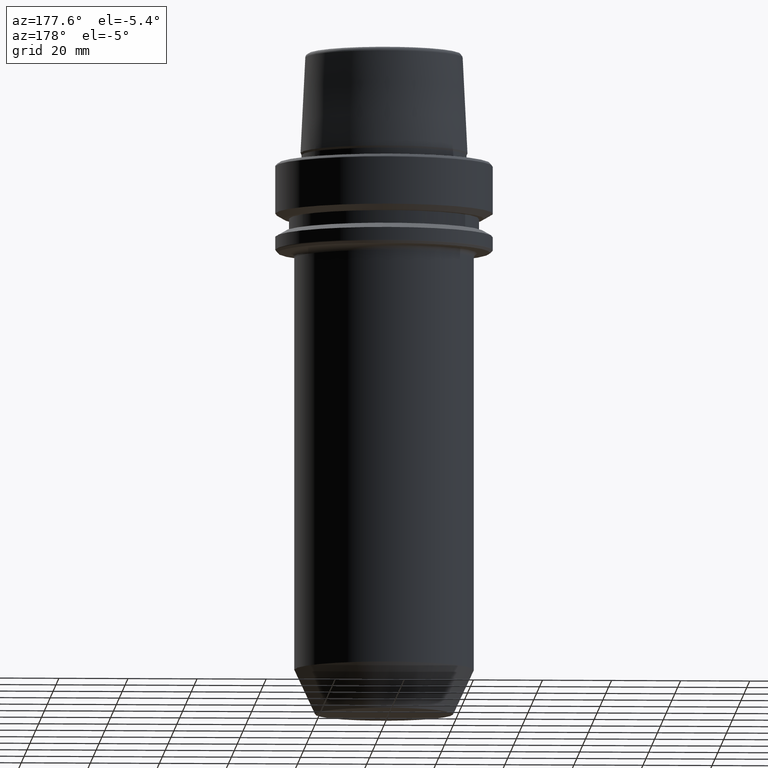
[diagram: clean part render]
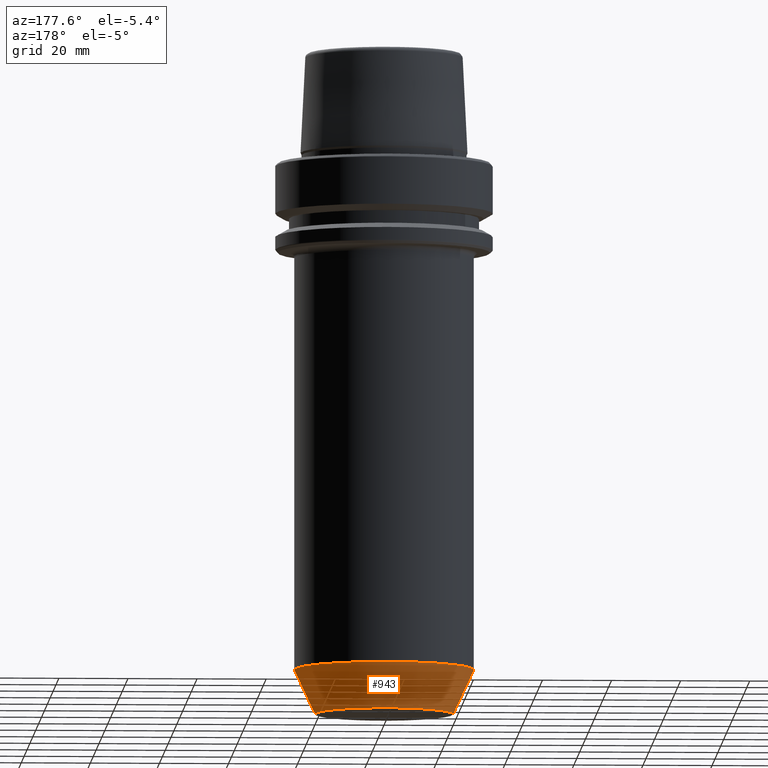
[diagram: same view with one face highlighted and labeled with its STEP entity id]
A machine part, auxiliary view. The second image highlights one B-rep face of the part: STEP entity #943.
In plain terms, the highlighted conical surface has half-angle 25 deg.
Its self-contained STEP definition (entity closure, byte-faithful):
#25 = CONICAL_SURFACE ( 'NONE', #1103, 20.00000000000000000, 0.4363323129985800500 ) ;
#88 = VERTEX_POINT ( 'NONE', #994 ) ;
#103 = FACE_OUTER_BOUND ( 'NONE', #605, .T. ) ;
#138 = VECTOR ( 'NONE', #144, 1000.000000000000000 ) ;
#144 = DIRECTION ( 'NONE',  ( 0.4226182617406973300, 0.0000000000000000000, 0.9063077870366509400 ) ) ;
#212 = AXIS2_PLACEMENT_3D ( 'NONE', #991, #651, #1204 ) ;
#321 = ORIENTED_EDGE ( 'NONE', *, *, #590, .T. ) ;
#360 = EDGE_CURVE ( 'NONE', #88, #491, #1163, .T. ) ;
#404 = CARTESIAN_POINT ( 'NONE',  ( 20.00000000000000000, 0.0000000000000000000, -160.0000000000000000 ) ) ;
#463 = VERTEX_POINT ( 'NONE', #404 ) ;
#486 = AXIS2_PLACEMENT_3D ( 'NONE', #1228, #541, #1117 ) ;
#491 = VERTEX_POINT ( 'NONE', #1249 ) ;
#493 = DIRECTION ( 'NONE',  ( -0.0000000000000000000, -0.0000000000000000000, 1.000000000000000000 ) ) ;
#514 = CARTESIAN_POINT ( 'NONE',  ( -20.00000000000000000, 2.449293598294706500E-015, -160.0000000000000000 ) ) ;
#541 = DIRECTION ( 'NONE',  ( -0.0000000000000000000, -0.0000000000000000000, 1.000000000000000000 ) ) ;
#571 = EDGE_CURVE ( 'NONE', #463, #88, #613, .T. ) ;
#590 = EDGE_CURVE ( 'NONE', #463, #1212, #610, .T. ) ;
#605 = EDGE_LOOP ( 'NONE', ( #321, #945, #704, #1070 ) ) ;
#610 = CIRCLE ( 'NONE', #486, 20.00000000000000000 ) ;
#613 = LINE ( 'NONE', #1130, #138 ) ;
#651 = DIRECTION ( 'NONE',  ( -0.0000000000000000000, -0.0000000000000000000, 1.000000000000000000 ) ) ;
#686 = CARTESIAN_POINT ( 'NONE',  ( 0.0000000000000000000, 0.0000000000000000000, -160.0000000000000000 ) ) ;
#704 = ORIENTED_EDGE ( 'NONE', *, *, #360, .F. ) ;
#797 = EDGE_CURVE ( 'NONE', #1212, #491, #845, .T. ) ;
#840 = CARTESIAN_POINT ( 'NONE',  ( -20.00000000000000000, 2.816687638038912400E-015, -160.0000000000000000 ) ) ;
#845 = LINE ( 'NONE', #514, #1162 ) ;
#877 = DIRECTION ( 'NONE',  ( 1.000000000000000000, 0.0000000000000000000, 0.0000000000000000000 ) ) ;
#896 = DIRECTION ( 'NONE',  ( -0.4226182617406973300, 5.175581015019632900E-017, 0.9063077870366509400 ) ) ;
#943 = ADVANCED_FACE ( 'NONE', ( #103 ), #25, .T. ) ;
#945 = ORIENTED_EDGE ( 'NONE', *, *, #797, .T. ) ;
#991 = CARTESIAN_POINT ( 'NONE',  ( 0.0000000000000000000, 0.0000000000000000000, -147.1329584769425800 ) ) ;
#994 = CARTESIAN_POINT ( 'NONE',  ( 26.00000000000000000, 0.0000000000000000000, -147.1329584769425800 ) ) ;
#1070 = ORIENTED_EDGE ( 'NONE', *, *, #571, .F. ) ;
#1103 = AXIS2_PLACEMENT_3D ( 'NONE', #686, #493, #877 ) ;
#1117 = DIRECTION ( 'NONE',  ( 1.000000000000000000, 0.0000000000000000000, 0.0000000000000000000 ) ) ;
#1130 = CARTESIAN_POINT ( 'NONE',  ( 20.00000000000000000, 0.0000000000000000000, -160.0000000000000000 ) ) ;
#1162 = VECTOR ( 'NONE', #896, 1000.000000000000000 ) ;
#1163 = CIRCLE ( 'NONE', #212, 26.00000000000000000 ) ;
#1204 = DIRECTION ( 'NONE',  ( 1.000000000000000000, 0.0000000000000000000, 0.0000000000000000000 ) ) ;
#1212 = VERTEX_POINT ( 'NONE', #840 ) ;
#1228 = CARTESIAN_POINT ( 'NONE',  ( 0.0000000000000000000, 0.0000000000000000000, -160.0000000000000000 ) ) ;
#1249 = CARTESIAN_POINT ( 'NONE',  ( -26.00000000000000000, 3.184081677783118200E-015, -147.1329584769425800 ) ) ;